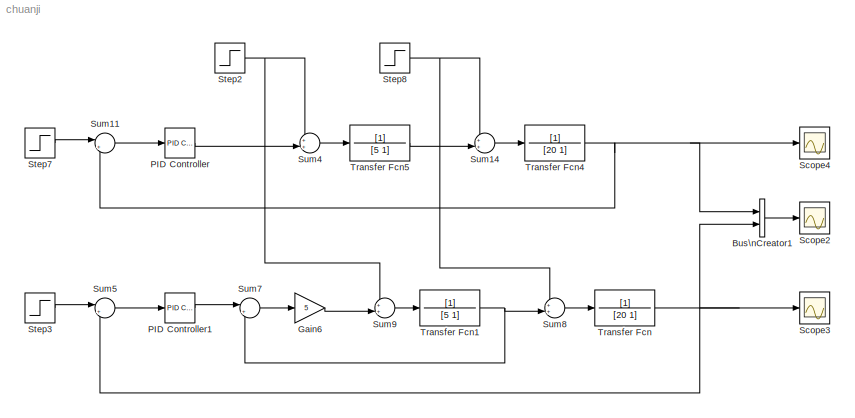
MODEL chuanji
KIND model
BLOCK [BusCreator] Bus\nCreator1
  DisplayOption = bar
  Inputs = 2
  Ports = [2, 1]
BLOCK [Gain] Gain6
  Gain = 5
  OutDataType = fixdt(1, 16)
  OutDataTypeMode = Inherit via internal rule
  OutDataTypeStr = Inherit: Inherit via internal rule
  OutScaling = 2^0
  ParamDataTypeStr = Inherit: Inherit via internal rule
  ParameterDataType = fixdt(1, 16)
  ParameterDataTypeMode = Inherit via internal rule
  ParameterScaling = 2^0
  SaturateOnIntegerOverflow = off
BLOCK [Reference] PID Controller  REF=simulink_extras/Additional\nLinear/PID Controller
  D = 2
  FunctionWithSeparateData = off
  I = 1
  P = 9
  Ports = [1, 1]
  RTWMemSecDataConstants = Inherit from model
  RTWMemSecDataInternal = Inherit from model
  RTWMemSecDataParameters = Inherit from model
  RTWMemSecFuncExecute = Inherit from model
  RTWMemSecFuncInitTerm = Inherit from model
  ShowPortLabels = FromPortIcon
  SourceBlock = simulink_extras/Additional\nLinear/PID Controller
  SourceType = PID Controller
  SystemSampleTime = -1
BLOCK [Reference] PID Controller1  REF=simulink_extras/Additional\nLinear/PID Controller
  D = 2
  FunctionWithSeparateData = off
  I = 1
  P = 9
  Ports = [1, 1]
  RTWMemSecDataConstants = Inherit from model
  RTWMemSecDataInternal = Inherit from model
  RTWMemSecDataParameters = Inherit from model
  RTWMemSecFuncExecute = Inherit from model
  RTWMemSecFuncInitTerm = Inherit from model
  ShowPortLabels = FromPortIcon
  SourceBlock = simulink_extras/Additional\nLinear/PID Controller
  SourceType = PID Controller
  SystemSampleTime = -1
BLOCK [Scope] Scope2
  DataFormat = StructureWithTime
  Floating = off
  NumInputPorts = 1
  Ports = [1]
  SampleTime = 0
BLOCK [Scope] Scope3
  DataFormat = StructureWithTime
  Floating = off
  NumInputPorts = 1
  Ports = [1]
  SampleTime = 0
  SaveName = ScopeData2
BLOCK [Scope] Scope4
  DataFormat = StructureWithTime
  Floating = off
  NumInputPorts = 1
  Ports = [1]
  SampleTime = 0
  SaveName = ScopeData3
BLOCK [Step] Step2
  SampleTime = 0
  Time = 60
BLOCK [Step] Step3
  SampleTime = 0
  Time = 0
BLOCK [Step] Step7
  SampleTime = 0
  Time = 0
BLOCK [Step] Step8
  After = 0
  SampleTime = 0
  Time = 60
BLOCK [Sum] Sum11
  IconShape = round
  InputSameDT = off
  Inputs = |+-
  OutDataType = fixdt(1, 16)
  OutDataTypeMode = Inherit via internal rule
  OutDataTypeStr = Inherit: Inherit via internal rule
  OutScaling = 2^0
  Ports = [2, 1]
  SaturateOnIntegerOverflow = off
BLOCK [Sum] Sum14
  IconShape = round
  InputSameDT = off
  Inputs = ++|
  OutDataType = fixdt(1, 16)
  OutDataTypeMode = Inherit via internal rule
  OutDataTypeStr = Inherit: Inherit via internal rule
  OutScaling = 2^0
  Ports = [2, 1]
  SaturateOnIntegerOverflow = off
BLOCK [Sum] Sum4
  IconShape = round
  InputSameDT = off
  Inputs = ++|
  OutDataType = fixdt(1, 16)
  OutDataTypeMode = Inherit via internal rule
  OutDataTypeStr = Inherit: Inherit via internal rule
  OutScaling = 2^0
  Ports = [2, 1]
  SaturateOnIntegerOverflow = off
BLOCK [Sum] Sum5
  IconShape = round
  InputSameDT = off
  Inputs = |+-
  OutDataType = fixdt(1, 16)
  OutDataTypeMode = Inherit via internal rule
  OutDataTypeStr = Inherit: Inherit via internal rule
  OutScaling = 2^0
  Ports = [2, 1]
  SaturateOnIntegerOverflow = off
BLOCK [Sum] Sum7
  IconShape = round
  InputSameDT = off
  Inputs = |+-
  OutDataType = fixdt(1, 16)
  OutDataTypeMode = Inherit via internal rule
  OutDataTypeStr = Inherit: Inherit via internal rule
  OutScaling = 2^0
  Ports = [2, 1]
  SaturateOnIntegerOverflow = off
BLOCK [Sum] Sum8
  IconShape = round
  InputSameDT = off
  Inputs = ++|
  OutDataType = fixdt(1, 16)
  OutDataTypeMode = Inherit via internal rule
  OutDataTypeStr = Inherit: Inherit via internal rule
  OutScaling = 2^0
  Ports = [2, 1]
  SaturateOnIntegerOverflow = off
BLOCK [Sum] Sum9
  IconShape = round
  InputSameDT = off
  Inputs = ++|
  OutDataType = fixdt(1, 16)
  OutDataTypeMode = Inherit via internal rule
  OutDataTypeStr = Inherit: Inherit via internal rule
  OutScaling = 2^0
  Ports = [2, 1]
  SaturateOnIntegerOverflow = off
BLOCK [TransferFcn] Transfer Fcn
  Denominator = [20 1]
BLOCK [TransferFcn] Transfer Fcn1
  Denominator = [5 1]
BLOCK [TransferFcn] Transfer Fcn4
  Denominator = [20 1]
BLOCK [TransferFcn] Transfer Fcn5
  Denominator = [5 1]
LINE Bus\nCreator1:1 -> Scope2:1
LINE Gain6:1 -> Sum9:2
LINE PID Controller1:1 -> Sum7:1
LINE PID Controller:1 -> Sum4:2
NET Step2:1 -> Sum4:1, Sum9:1
LINE Step3:1 -> Sum5:1
LINE Step7:1 -> Sum11:1
NET Step8:1 -> Sum14:1, Sum8:1
LINE Sum11:1 -> PID Controller:1
LINE Sum14:1 -> Transfer Fcn4:1
LINE Sum4:1 -> Transfer Fcn5:1
LINE Sum5:1 -> PID Controller1:1
LINE Sum7:1 -> Gain6:1
LINE Sum8:1 -> Transfer Fcn:1
LINE Sum9:1 -> Transfer Fcn1:1
NET Transfer Fcn1:1 -> Sum7:2, Sum8:2
NET Transfer Fcn4:1 -> Bus\nCreator1:1, Scope4:1, Sum11:2
LINE Transfer Fcn5:1 -> Sum14:2
NET Transfer Fcn:1 -> Bus\nCreator1:2, Scope3:1, Sum5:2
note: NET lines group one-source signal fan-out (src -> all destinations, sorted); 1:1 wires keep LINE
